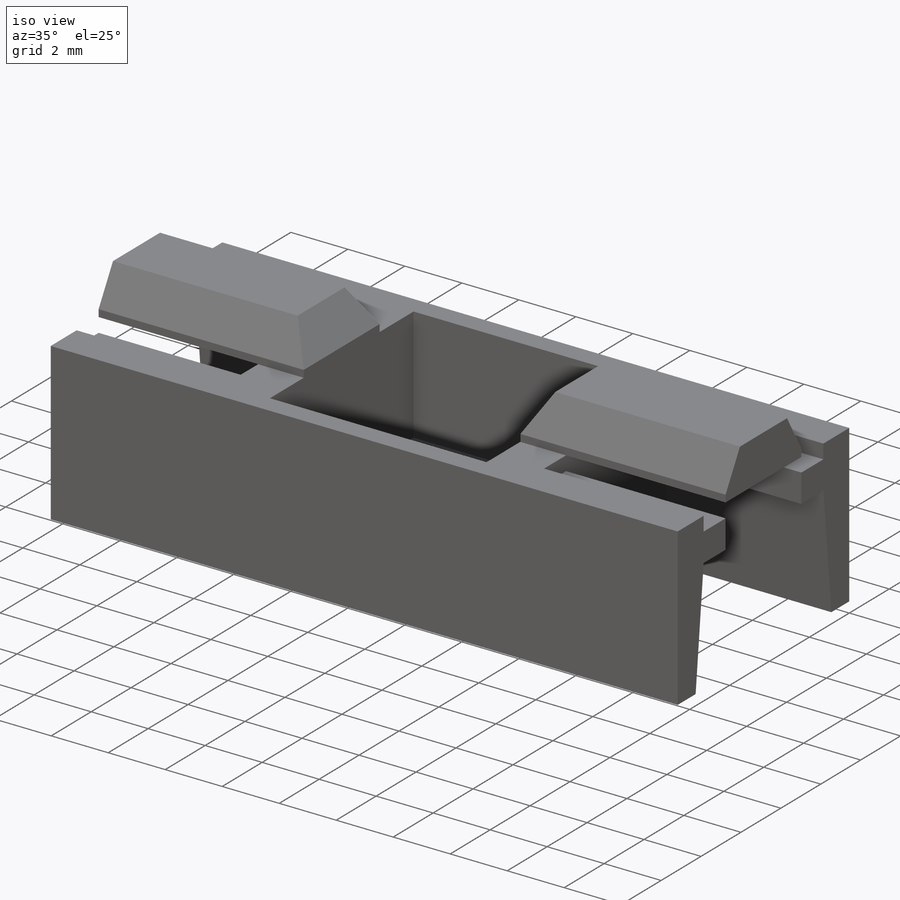
[diagram: iso view]
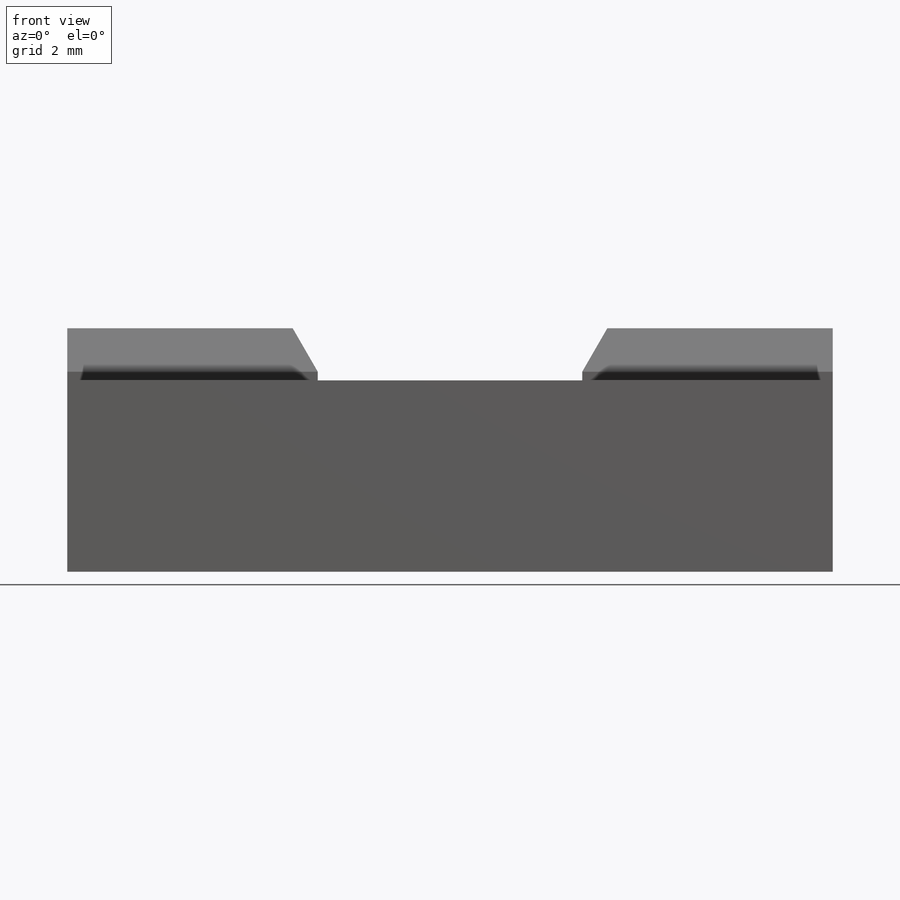
[diagram: front view]
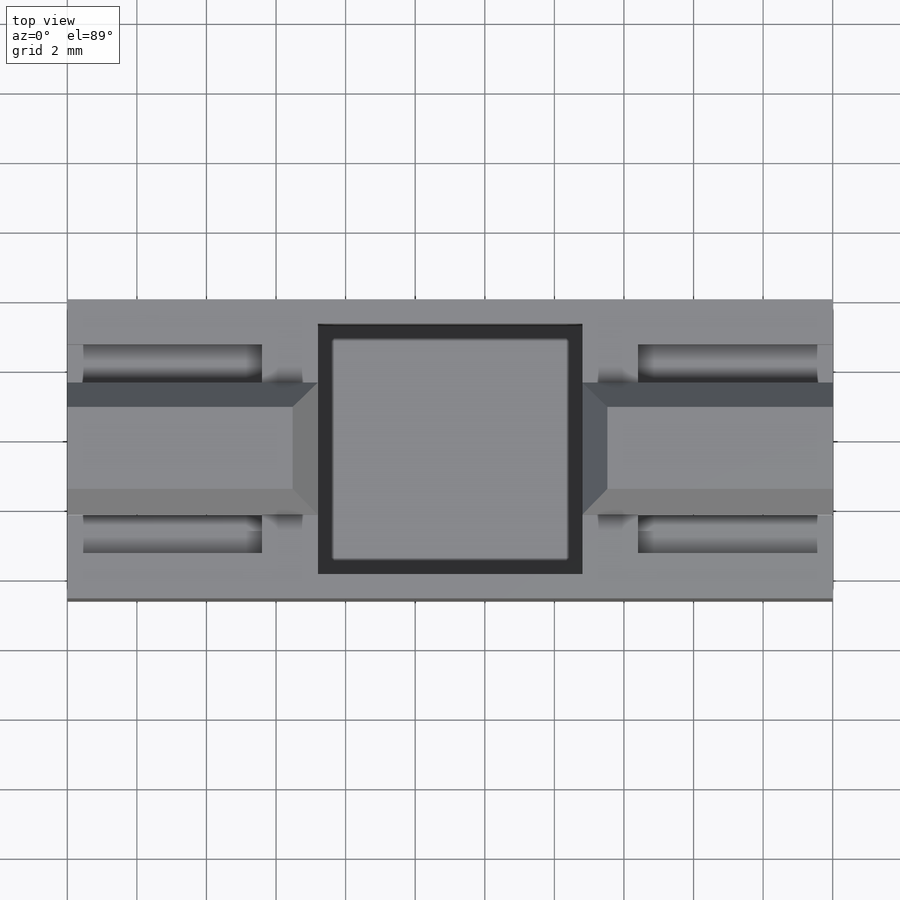
[diagram: top view]
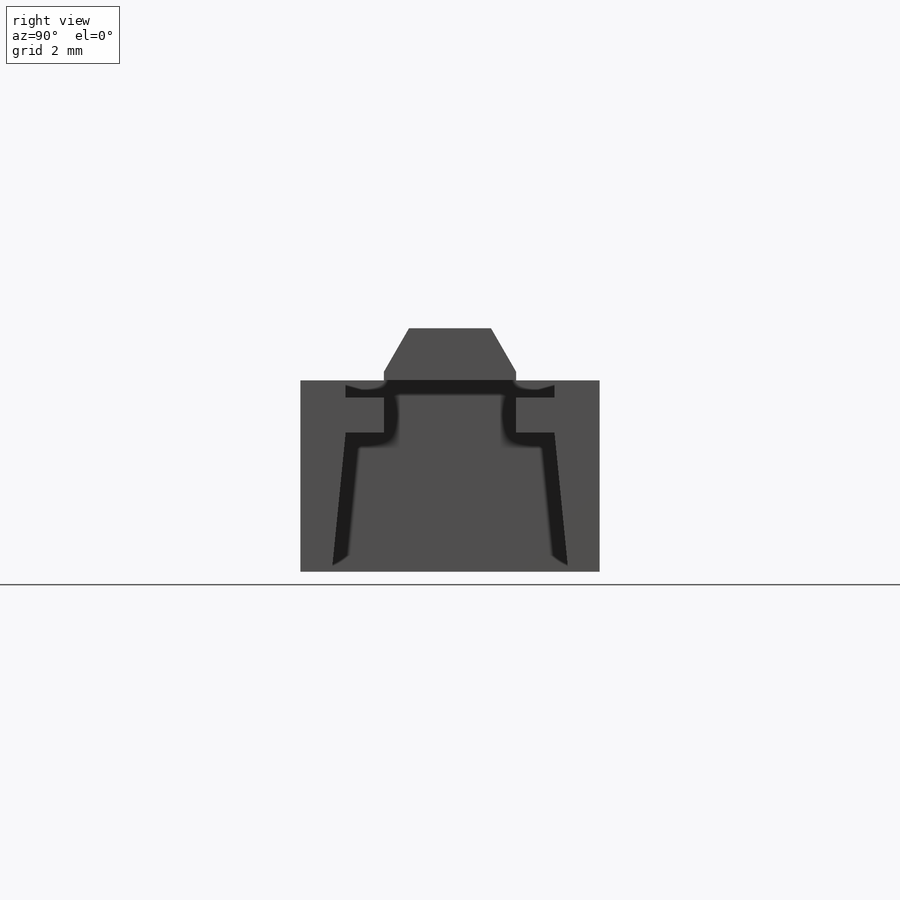
[diagram: right view]
SOLIDWORKS PART (.sldprt)
format: sldprt  version: not decoded by parser v0  size: 269,824 bytes
history: native  units: mm
features: plane x4, sketch x4, cut_extrude x3, chamfer x2, material x1, extrude x1, mirror x1 (+8 scaffold rows collapsed)
feature tree (24):
  scaffold x8  (default folders/planes/origin — collapsed)
  material  "Matériau <non spécifié>"
  plane  "Plan de face"
  plane  "Plan de dessus"
  plane  "Plan de droite"
  sketch  "Esquisse1"  dims[D1=7.0mm]
  extrude  "Boss.-Extru.1"  Depth=8.6mm
  sketch  "Esquisse2"  dims[D1=3.8mm D2=0.7mm D3=0.7mm D4=3.8mm]
  cut_extrude  "Enlèv. mat.-Extru.1"  Depth=5.5mm
  sketch  "Esquisse3"  dims[D1=5.5mm D2=2.4mm]
  cut_extrude  "Enlèv. mat.-Extru.2"  [1 undecoded]
  plane  "Plan1"  Offset=11mm
  sketch  "Esquisse6"  dims[D1=4.0mm D2=0.9mm D3=1.3mm D4=1.0mm D5=1.9mm]
  cut_extrude  "Enlèv. mat.-Extru.5"  Depth=5.6mm
  chamfer  "Chanfrein1"  Distance=1.25mm Angle=30deg
  mirror  "Symétrie4"
  chamfer  "Chanfrein2"  Distance=1.25mm Angle=30deg
decode coverage: 9 of 11 modeling features carry decoded parameters
note: 1 parameter value undecoded
note: suppression state not decoded; provenance and decode notes live in map.json
